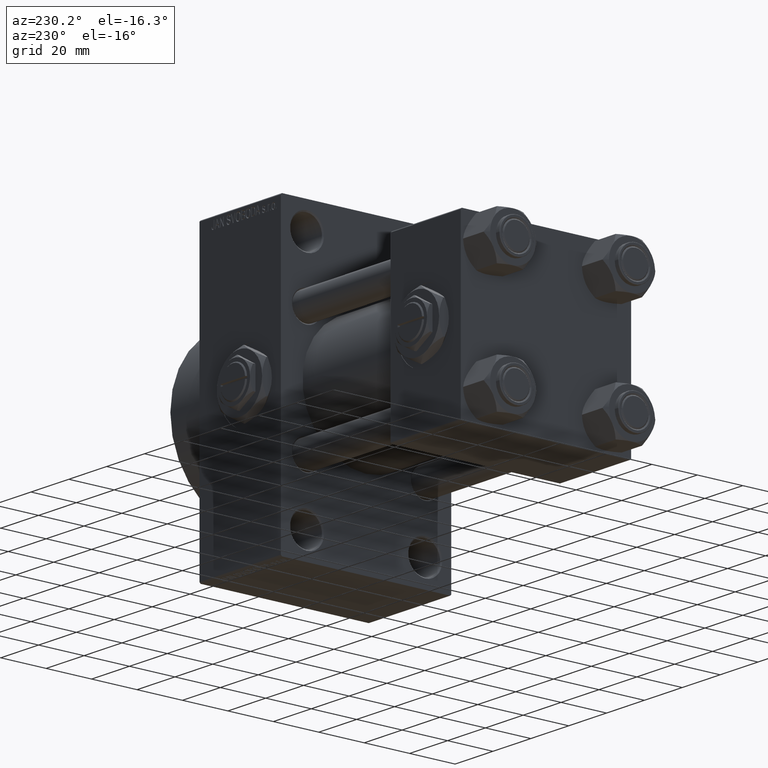
[diagram: clean part render]
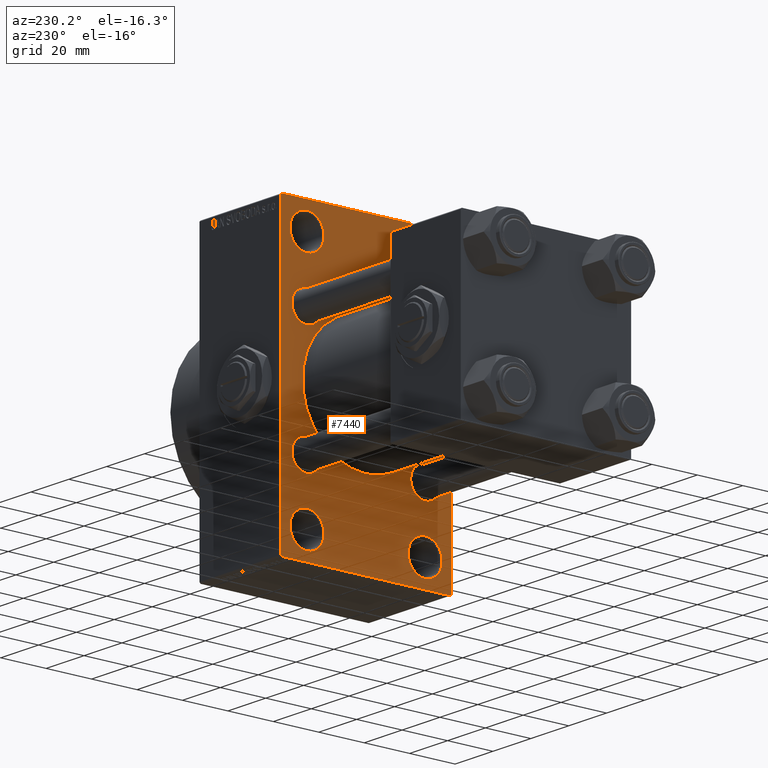
[diagram: same view with one face highlighted and labeled with its STEP entity id]
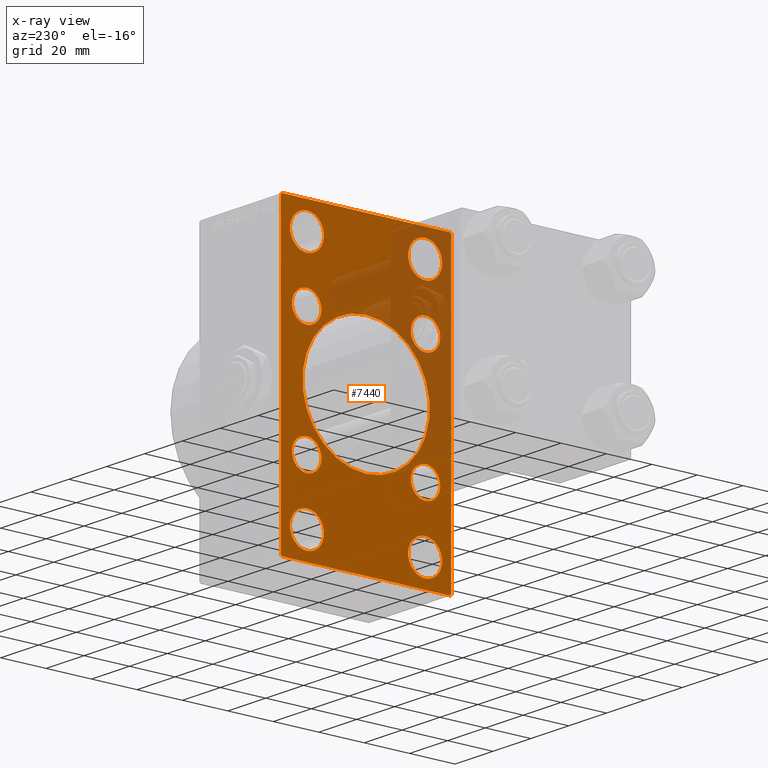
[diagram: x-ray of the same camera — body ghosted, the highlighted face saturated]
A machine part, auxiliary view. The second image highlights one B-rep face of the part: STEP entity #7440.
The next image is the same camera in x-ray: the body ghosted, the highlighted face saturated — about 28% of this face is hidden behind the body in this view.
In plain terms, the highlighted planar face has unit normal (-1, 0, 0).
Its self-contained STEP definition (entity closure, byte-faithful):
#83 = DIRECTION ( 'NONE',  ( 0.000000000000000000, 0.000000000000000000, 1.000000000000000000 ) ) ;
#128 = EDGE_LOOP ( 'NONE', ( #4265, #7897 ) ) ;
#221 = DIRECTION ( 'NONE',  ( 1.000000000000000000, -0.000000000000000000, 0.000000000000000000 ) ) ;
#270 = DIRECTION ( 'NONE',  ( 0.000000000000000000, 0.000000000000000000, -1.000000000000000000 ) ) ;
#313 = CARTESIAN_POINT ( 'NONE',  ( 95.00000000000000000, -36.99999999999993605, -64.00000000000001421 ) ) ;
#574 = CARTESIAN_POINT ( 'NONE',  ( 95.00000000000000000, 26.14999999999999858, -26.15000000000000213 ) ) ;
#795 = AXIS2_PLACEMENT_3D ( 'NONE', #7275, #15244, #38289 ) ;
#829 = CIRCLE ( 'NONE', #40812, 7.499999999999978684 ) ;
#1043 = AXIS2_PLACEMENT_3D ( 'NONE', #39448, #14977, #7744 ) ;
#1136 = CARTESIAN_POINT ( 'NONE',  ( 95.00000000000000000, 37.49999999999999289, -63.50000000000001421 ) ) ;
#1391 = ORIENTED_EDGE ( 'NONE', *, *, #9549, .T. ) ;
#1440 = DIRECTION ( 'NONE',  ( -0.000000000000000000, -0.7071067811865573427, -0.7071067811865378028 ) ) ;
#1737 = CARTESIAN_POINT ( 'NONE',  ( 95.00000000000000000, -37.49999999999999289, -63.49999999999997158 ) ) ;
#1801 = FACE_BOUND ( 'NONE', #28844, .T. ) ;
#2173 = VERTEX_POINT ( 'NONE', #29539 ) ;
#2260 = CARTESIAN_POINT ( 'NONE',  ( 95.00000000000000000, 26.14999999999999858, -32.65000000000001279 ) ) ;
#2422 = VERTEX_POINT ( 'NONE', #24739 ) ;
#2558 = AXIS2_PLACEMENT_3D ( 'NONE', #39800, #5780, #21021 ) ;
#2568 = CARTESIAN_POINT ( 'NONE',  ( 95.00000000000000000, 37.49999999999999289, -64.00000000000000000 ) ) ;
#2879 = AXIS2_PLACEMENT_3D ( 'NONE', #11671, #4660, #42198 ) ;
#2905 = EDGE_CURVE ( 'NONE', #48342, #20777, #10766, .T. ) ;
#3347 = LINE ( 'NONE', #18590, #21278 ) ;
#4265 = ORIENTED_EDGE ( 'NONE', *, *, #29586, .T. ) ;
#4648 = DIRECTION ( 'NONE',  ( 0.000000000000000000, 0.000000000000000000, -1.000000000000000000 ) ) ;
#4660 = DIRECTION ( 'NONE',  ( 1.000000000000000000, -0.000000000000000000, 0.000000000000000000 ) ) ;
#4897 = CARTESIAN_POINT ( 'NONE',  ( 95.00000000000000000, 26.14999999999999858, 19.64999999999999147 ) ) ;
#4958 = ORIENTED_EDGE ( 'NONE', *, *, #2905, .T. ) ;
#5078 = EDGE_LOOP ( 'NONE', ( #39552, #40648 ) ) ;
#5302 = VERTEX_POINT ( 'NONE', #22770 ) ;
#5314 = CIRCLE ( 'NONE', #2879, 7.499999999999978684 ) ;
#5387 = VERTEX_POINT ( 'NONE', #7505 ) ;
#5542 = EDGE_CURVE ( 'NONE', #17296, #26018, #8448, .T. ) ;
#5745 = CARTESIAN_POINT ( 'NONE',  ( 95.00000000000000000, 26.00000000000000000, -52.49999999999999289 ) ) ;
#5780 = DIRECTION ( 'NONE',  ( 1.000000000000000000, -0.000000000000000000, 0.000000000000000000 ) ) ;
#6471 = ORIENTED_EDGE ( 'NONE', *, *, #7016, .T. ) ;
#6828 = CARTESIAN_POINT ( 'NONE',  ( 95.00000000000000000, -26.14999999999999147, -19.65000000000000213 ) ) ;
#7016 = EDGE_CURVE ( 'NONE', #20777, #48342, #11780, .T. ) ;
#7101 = DIRECTION ( 'NONE',  ( 0.000000000000000000, -0.7071067811865574537, 0.7071067811865376918 ) ) ;
#7174 = CARTESIAN_POINT ( 'NONE',  ( 95.00000000000000000, -36.99999999999995737, 63.99999999999997158 ) ) ;
#7267 = AXIS2_PLACEMENT_3D ( 'NONE', #10365, #19769, #270 ) ;
#7275 = CARTESIAN_POINT ( 'NONE',  ( 95.00000000000000000, 26.14999999999999858, -26.15000000000000213 ) ) ;
#7440 = ADVANCED_FACE ( 'NONE', ( #28074, #1801, #13057, #16794, #43597, #32579, #36338, #24825, #40086, #23826 ), #28326, .T. ) ;
#7505 = CARTESIAN_POINT ( 'NONE',  ( 95.00000000000000000, 26.00000000000000000, 45.00000000000001421 ) ) ;
#7661 = CIRCLE ( 'NONE', #24417, 28.00000000000000000 ) ;
#7744 = DIRECTION ( 'NONE',  ( 0.000000000000000000, 0.000000000000000000, 1.000000000000000000 ) ) ;
#7897 = ORIENTED_EDGE ( 'NONE', *, *, #23040, .T. ) ;
#8448 = CIRCLE ( 'NONE', #33997, 7.499999999999978684 ) ;
#8469 = DIRECTION ( 'NONE',  ( 0.000000000000000000, 0.000000000000000000, 1.000000000000000000 ) ) ;
#9117 = CARTESIAN_POINT ( 'NONE',  ( 95.00000000000000000, 26.00000000000000000, 52.49999999999999289 ) ) ;
#9549 = EDGE_CURVE ( 'NONE', #16879, #11946, #7661, .T. ) ;
#9604 = AXIS2_PLACEMENT_3D ( 'NONE', #42260, #221, #8469 ) ;
#9639 = CARTESIAN_POINT ( 'NONE',  ( 95.00000000000000000, -26.14999999999999147, -32.65000000000001990 ) ) ;
#9651 = VERTEX_POINT ( 'NONE', #10255 ) ;
#10255 = CARTESIAN_POINT ( 'NONE',  ( 95.00000000000000000, -25.99999999999999645, -59.99999999999997158 ) ) ;
#10301 = EDGE_CURVE ( 'NONE', #9651, #46891, #5314, .T. ) ;
#10365 = CARTESIAN_POINT ( 'NONE',  ( 95.00000000000000000, -2.602085213965210642E-15, 0.000000000000000000 ) ) ;
#10376 = ORIENTED_EDGE ( 'NONE', *, *, #10301, .T. ) ;
#10536 = CARTESIAN_POINT ( 'NONE',  ( 95.00000000000000000, -26.14999999999999147, 26.15000000000000924 ) ) ;
#10648 = CIRCLE ( 'NONE', #1043, 7.499999999999978684 ) ;
#10751 = CARTESIAN_POINT ( 'NONE',  ( 95.00000000000000000, -26.14999999999999147, 26.15000000000000924 ) ) ;
#10766 = CIRCLE ( 'NONE', #12328, 6.500000000000008882 ) ;
#11130 = DIRECTION ( 'NONE',  ( 0.000000000000000000, 0.000000000000000000, 1.000000000000000000 ) ) ;
#11671 = CARTESIAN_POINT ( 'NONE',  ( 95.00000000000000000, -25.99999999999999645, -52.49999999999999289 ) ) ;
#11690 = CARTESIAN_POINT ( 'NONE',  ( 95.00000000000000000, 8.269258236473776482E-16, -28.00000000000000000 ) ) ;
#11780 = CIRCLE ( 'NONE', #15759, 6.500000000000008882 ) ;
#11946 = VERTEX_POINT ( 'NONE', #11690 ) ;
#12007 = AXIS2_PLACEMENT_3D ( 'NONE', #16484, #24266, #12997 ) ;
#12328 = AXIS2_PLACEMENT_3D ( 'NONE', #34654, #45177, #11130 ) ;
#12398 = DIRECTION ( 'NONE',  ( 0.000000000000000000, -1.000000000000000000, -1.850371707708594563E-16 ) ) ;
#12556 = DIRECTION ( 'NONE',  ( -1.000000000000000000, 0.000000000000000000, -0.000000000000000000 ) ) ;
#12935 = VECTOR ( 'NONE', #37689, 1000.000000000000000 ) ;
#12997 = DIRECTION ( 'NONE',  ( 0.000000000000000000, 0.000000000000000000, 1.000000000000000000 ) ) ;
#13057 = FACE_BOUND ( 'NONE', #5078, .T. ) ;
#13366 = CIRCLE ( 'NONE', #44559, 6.500000000000008882 ) ;
#13392 = DIRECTION ( 'NONE',  ( 1.000000000000000000, -0.000000000000000000, 0.000000000000000000 ) ) ;
#13487 = EDGE_CURVE ( 'NONE', #29581, #40166, #13366, .T. ) ;
#13645 = CIRCLE ( 'NONE', #7267, 28.00000000000000000 ) ;
#14157 = LINE ( 'NONE', #26166, #12935 ) ;
#14362 = CIRCLE ( 'NONE', #9604, 6.500000000000008882 ) ;
#14414 = VECTOR ( 'NONE', #17595, 1000.000000000000000 ) ;
#14809 = VERTEX_POINT ( 'NONE', #15673 ) ;
#14973 = AXIS2_PLACEMENT_3D ( 'NONE', #24572, #12556, #47094 ) ;
#14977 = DIRECTION ( 'NONE',  ( 1.000000000000000000, -0.000000000000000000, 0.000000000000000000 ) ) ;
#15058 = CARTESIAN_POINT ( 'NONE',  ( 95.00000000000000000, -26.14999999999999147, 32.65000000000001990 ) ) ;
#15224 = CARTESIAN_POINT ( 'NONE',  ( 95.00000000000000000, 50.49999999999894840, 50.50000000000176215 ) ) ;
#15244 = DIRECTION ( 'NONE',  ( 1.000000000000000000, -0.000000000000000000, 0.000000000000000000 ) ) ;
#15624 = CARTESIAN_POINT ( 'NONE',  ( 95.00000000000000000, -2.602085213965210642E-15, 28.00000000000000000 ) ) ;
#15673 = CARTESIAN_POINT ( 'NONE',  ( 95.00000000000000000, 26.14999999999999858, -19.64999999999999503 ) ) ;
#15759 = AXIS2_PLACEMENT_3D ( 'NONE', #36454, #39713, #19754 ) ;
#15825 = AXIS2_PLACEMENT_3D ( 'NONE', #17893, #44684, #41673 ) ;
#16376 = LINE ( 'NONE', #42923, #16953 ) ;
#16484 = CARTESIAN_POINT ( 'NONE',  ( 95.00000000000000000, -25.99999999999999645, 52.50000000000000000 ) ) ;
#16794 = FACE_BOUND ( 'NONE', #128, .T. ) ;
#16879 = VERTEX_POINT ( 'NONE', #15624 ) ;
#16953 = VECTOR ( 'NONE', #4648, 1000.000000000000000 ) ;
#16986 = CIRCLE ( 'NONE', #29800, 7.499999999999978684 ) ;
#17296 = VERTEX_POINT ( 'NONE', #36085 ) ;
#17381 = VERTEX_POINT ( 'NONE', #7174 ) ;
#17467 = EDGE_LOOP ( 'NONE', ( #33487, #49506 ) ) ;
#17502 = DIRECTION ( 'NONE',  ( 0.000000000000000000, 0.000000000000000000, 1.000000000000000000 ) ) ;
#17526 = DIRECTION ( 'NONE',  ( 1.000000000000000000, -0.000000000000000000, 0.000000000000000000 ) ) ;
#17595 = DIRECTION ( 'NONE',  ( 0.000000000000000000, -1.000000000000000000, -1.850371707708594563E-16 ) ) ;
#17893 = CARTESIAN_POINT ( 'NONE',  ( 95.00000000000000000, 26.00000000000000000, -52.49999999999999289 ) ) ;
#18053 = EDGE_LOOP ( 'NONE', ( #6471, #4958 ) ) ;
#18349 = CARTESIAN_POINT ( 'NONE',  ( 95.00000000000000000, 37.50000000000000000, 63.99999999999998579 ) ) ;
#18590 = CARTESIAN_POINT ( 'NONE',  ( 95.00000000000000000, -50.49999999999945999, -50.50000000000086686 ) ) ;
#18765 = ORIENTED_EDGE ( 'NONE', *, *, #27951, .T. ) ;
#19047 = CARTESIAN_POINT ( 'NONE',  ( 95.00000000000000000, -25.99999999999999645, -45.00000000000001421 ) ) ;
#19219 = EDGE_CURVE ( 'NONE', #40166, #29581, #45518, .T. ) ;
#19343 = EDGE_CURVE ( 'NONE', #2173, #2422, #49528, .T. ) ;
#19754 = DIRECTION ( 'NONE',  ( 0.000000000000000000, 0.000000000000000000, 1.000000000000000000 ) ) ;
#19769 = DIRECTION ( 'NONE',  ( 1.000000000000000000, 0.000000000000000000, 0.000000000000000000 ) ) ;
#20321 = CARTESIAN_POINT ( 'NONE',  ( 95.00000000000000000, -25.99999999999999645, 52.50000000000000000 ) ) ;
#20371 = DIRECTION ( 'NONE',  ( -0.000000000000000000, 0.7071067811865524577, 0.7071067811865426878 ) ) ;
#20777 = VERTEX_POINT ( 'NONE', #29565 ) ;
#20990 = DIRECTION ( 'NONE',  ( 1.000000000000000000, -0.000000000000000000, 0.000000000000000000 ) ) ;
#21021 = DIRECTION ( 'NONE',  ( 0.000000000000000000, 0.000000000000000000, 1.000000000000000000 ) ) ;
#21278 = VECTOR ( 'NONE', #7101, 999.9999999999998863 ) ;
#21433 = VERTEX_POINT ( 'NONE', #9639 ) ;
#21584 = AXIS2_PLACEMENT_3D ( 'NONE', #9117, #43155, #24381 ) ;
#21651 = CARTESIAN_POINT ( 'NONE',  ( 95.00000000000000000, 26.00000000000000000, 52.49999999999999289 ) ) ;
#22770 = CARTESIAN_POINT ( 'NONE',  ( 95.00000000000000000, -25.99999999999999645, 45.00000000000002132 ) ) ;
#22927 = EDGE_CURVE ( 'NONE', #49149, #17381, #31882, .T. ) ;
#23006 = ORIENTED_EDGE ( 'NONE', *, *, #24173, .F. ) ;
#23040 = EDGE_CURVE ( 'NONE', #5387, #39050, #26361, .T. ) ;
#23274 = VERTEX_POINT ( 'NONE', #313 ) ;
#23352 = ORIENTED_EDGE ( 'NONE', *, *, #24378, .T. ) ;
#23587 = EDGE_CURVE ( 'NONE', #14809, #46117, #43952, .T. ) ;
#23785 = EDGE_CURVE ( 'NONE', #47487, #5302, #47198, .T. ) ;
#23812 = VERTEX_POINT ( 'NONE', #1737 ) ;
#23826 = FACE_OUTER_BOUND ( 'NONE', #39611, .T. ) ;
#24104 = EDGE_LOOP ( 'NONE', ( #25696, #29888 ) ) ;
#24173 = EDGE_CURVE ( 'NONE', #2173, #17381, #32894, .T. ) ;
#24266 = DIRECTION ( 'NONE',  ( 1.000000000000000000, -0.000000000000000000, 0.000000000000000000 ) ) ;
#24378 = EDGE_CURVE ( 'NONE', #5302, #47487, #829, .T. ) ;
#24381 = DIRECTION ( 'NONE',  ( 0.000000000000000000, 0.000000000000000000, 1.000000000000000000 ) ) ;
#24417 = AXIS2_PLACEMENT_3D ( 'NONE', #46811, #39804, #39553 ) ;
#24572 = CARTESIAN_POINT ( 'NONE',  ( 95.00000000000000000, 0.000000000000000000, 0.000000000000000000 ) ) ;
#24739 = CARTESIAN_POINT ( 'NONE',  ( 95.00000000000000000, 37.50000000000000000, 63.49999999999998579 ) ) ;
#24825 = FACE_BOUND ( 'NONE', #17467, .T. ) ;
#25369 = EDGE_CURVE ( 'NONE', #11946, #16879, #13645, .T. ) ;
#25526 = AXIS2_PLACEMENT_3D ( 'NONE', #574, #38857, #83 ) ;
#25696 = ORIENTED_EDGE ( 'NONE', *, *, #19219, .T. ) ;
#25793 = DIRECTION ( 'NONE',  ( 0.000000000000000000, 0.000000000000000000, 1.000000000000000000 ) ) ;
#26018 = VERTEX_POINT ( 'NONE', #47341 ) ;
#26166 = CARTESIAN_POINT ( 'NONE',  ( 95.00000000000000000, 37.50000000000000000, 63.99999999999998579 ) ) ;
#26361 = CIRCLE ( 'NONE', #21584, 7.499999999999978684 ) ;
#26539 = VECTOR ( 'NONE', #1440, 1000.000000000000000 ) ;
#26982 = CARTESIAN_POINT ( 'NONE',  ( 95.00000000000000000, -37.49999999999999289, 63.49999999999994316 ) ) ;
#27033 = EDGE_CURVE ( 'NONE', #2422, #28154, #14157, .T. ) ;
#27192 = VECTOR ( 'NONE', #20371, 1000.000000000000000 ) ;
#27309 = CIRCLE ( 'NONE', #2558, 6.500000000000008882 ) ;
#27573 = DIRECTION ( 'NONE',  ( 0.000000000000000000, 0.000000000000000000, 1.000000000000000000 ) ) ;
#27951 = EDGE_CURVE ( 'NONE', #28154, #30308, #27960, .T. ) ;
#27960 = LINE ( 'NONE', #30976, #26539 ) ;
#28074 = FACE_BOUND ( 'NONE', #32347, .T. ) ;
#28154 = VERTEX_POINT ( 'NONE', #1136 ) ;
#28206 = EDGE_CURVE ( 'NONE', #49149, #23812, #16376, .T. ) ;
#28326 = PLANE ( 'NONE',  #14973 ) ;
#28844 = EDGE_LOOP ( 'NONE', ( #44155, #10376 ) ) ;
#29539 = CARTESIAN_POINT ( 'NONE',  ( 95.00000000000000000, 36.99999999999997158, 63.99999999999998579 ) ) ;
#29557 = AXIS2_PLACEMENT_3D ( 'NONE', #10751, #48541, #17502 ) ;
#29565 = CARTESIAN_POINT ( 'NONE',  ( 95.00000000000000000, 26.14999999999999858, 32.65000000000001990 ) ) ;
#29581 = VERTEX_POINT ( 'NONE', #43687 ) ;
#29586 = EDGE_CURVE ( 'NONE', #39050, #5387, #16986, .T. ) ;
#29800 = AXIS2_PLACEMENT_3D ( 'NONE', #21651, #13392, #44425 ) ;
#29888 = ORIENTED_EDGE ( 'NONE', *, *, #13487, .T. ) ;
#30308 = VERTEX_POINT ( 'NONE', #41297 ) ;
#30384 = EDGE_CURVE ( 'NONE', #46891, #9651, #10648, .T. ) ;
#30404 = CARTESIAN_POINT ( 'NONE',  ( 95.00000000000000000, 26.00000000000000000, 59.99999999999997158 ) ) ;
#30976 = CARTESIAN_POINT ( 'NONE',  ( 95.00000000000000000, 50.49999999999948841, -50.50000000000088107 ) ) ;
#31003 = DIRECTION ( 'NONE',  ( 0.000000000000000000, 0.7071067811865672237, -0.7071067811865279218 ) ) ;
#31007 = ORIENTED_EDGE ( 'NONE', *, *, #43141, .T. ) ;
#31703 = EDGE_LOOP ( 'NONE', ( #42252, #31007 ) ) ;
#31833 = DIRECTION ( 'NONE',  ( 1.000000000000000000, -0.000000000000000000, 0.000000000000000000 ) ) ;
#31882 = LINE ( 'NONE', #46899, #27192 ) ;
#32347 = EDGE_LOOP ( 'NONE', ( #33159, #23352 ) ) ;
#32579 = FACE_BOUND ( 'NONE', #18053, .T. ) ;
#32894 = LINE ( 'NONE', #18349, #14414 ) ;
#33159 = ORIENTED_EDGE ( 'NONE', *, *, #23785, .T. ) ;
#33487 = ORIENTED_EDGE ( 'NONE', *, *, #44448, .T. ) ;
#33734 = EDGE_CURVE ( 'NONE', #23274, #23812, #3347, .T. ) ;
#33997 = AXIS2_PLACEMENT_3D ( 'NONE', #5745, #20990, #47764 ) ;
#34654 = CARTESIAN_POINT ( 'NONE',  ( 95.00000000000000000, 26.14999999999999858, 26.15000000000000213 ) ) ;
#35236 = EDGE_CURVE ( 'NONE', #30308, #23274, #48355, .T. ) ;
#36085 = CARTESIAN_POINT ( 'NONE',  ( 95.00000000000000000, 26.00000000000000000, -45.00000000000001421 ) ) ;
#36256 = ORIENTED_EDGE ( 'NONE', *, *, #28206, .F. ) ;
#36338 = FACE_BOUND ( 'NONE', #31703, .T. ) ;
#36454 = CARTESIAN_POINT ( 'NONE',  ( 95.00000000000000000, 26.14999999999999858, 26.15000000000000213 ) ) ;
#36985 = EDGE_CURVE ( 'NONE', #26018, #17296, #38216, .T. ) ;
#37689 = DIRECTION ( 'NONE',  ( 0.000000000000000000, -5.421010862427522170E-17, -1.000000000000000000 ) ) ;
#38063 = ORIENTED_EDGE ( 'NONE', *, *, #33734, .T. ) ;
#38153 = CARTESIAN_POINT ( 'NONE',  ( 95.00000000000000000, -25.99999999999999645, 59.99999999999997868 ) ) ;
#38216 = CIRCLE ( 'NONE', #15825, 7.499999999999978684 ) ;
#38289 = DIRECTION ( 'NONE',  ( 0.000000000000000000, 0.000000000000000000, 1.000000000000000000 ) ) ;
#38857 = DIRECTION ( 'NONE',  ( 1.000000000000000000, -0.000000000000000000, 0.000000000000000000 ) ) ;
#39050 = VERTEX_POINT ( 'NONE', #30404 ) ;
#39448 = CARTESIAN_POINT ( 'NONE',  ( 95.00000000000000000, -25.99999999999999645, -52.49999999999999289 ) ) ;
#39552 = ORIENTED_EDGE ( 'NONE', *, *, #5542, .T. ) ;
#39553 = DIRECTION ( 'NONE',  ( 0.000000000000000000, 0.000000000000000000, -1.000000000000000000 ) ) ;
#39611 = EDGE_LOOP ( 'NONE', ( #45759, #38063, #36256, #39852, #23006, #45086, #44858, #18765 ) ) ;
#39713 = DIRECTION ( 'NONE',  ( 1.000000000000000000, -0.000000000000000000, 0.000000000000000000 ) ) ;
#39800 = CARTESIAN_POINT ( 'NONE',  ( 95.00000000000000000, -26.14999999999999147, -26.15000000000000924 ) ) ;
#39804 = DIRECTION ( 'NONE',  ( 1.000000000000000000, 0.000000000000000000, 0.000000000000000000 ) ) ;
#39852 = ORIENTED_EDGE ( 'NONE', *, *, #22927, .T. ) ;
#40086 = FACE_BOUND ( 'NONE', #45887, .T. ) ;
#40166 = VERTEX_POINT ( 'NONE', #15058 ) ;
#40648 = ORIENTED_EDGE ( 'NONE', *, *, #36985, .T. ) ;
#40812 = AXIS2_PLACEMENT_3D ( 'NONE', #20321, #31833, #27573 ) ;
#40835 = VERTEX_POINT ( 'NONE', #6828 ) ;
#41297 = CARTESIAN_POINT ( 'NONE',  ( 95.00000000000000000, 36.99999999999999289, -64.00000000000000000 ) ) ;
#41673 = DIRECTION ( 'NONE',  ( 0.000000000000000000, 0.000000000000000000, 1.000000000000000000 ) ) ;
#42144 = VECTOR ( 'NONE', #12398, 1000.000000000000000 ) ;
#42198 = DIRECTION ( 'NONE',  ( 0.000000000000000000, 0.000000000000000000, 1.000000000000000000 ) ) ;
#42252 = ORIENTED_EDGE ( 'NONE', *, *, #23587, .T. ) ;
#42260 = CARTESIAN_POINT ( 'NONE',  ( 95.00000000000000000, -26.14999999999999147, -26.15000000000000924 ) ) ;
#42344 = VECTOR ( 'NONE', #31003, 1000.000000000000000 ) ;
#42923 = CARTESIAN_POINT ( 'NONE',  ( 95.00000000000000000, -37.49999999999999289, 63.99999999999997158 ) ) ;
#43104 = CIRCLE ( 'NONE', #25526, 6.500000000000008882 ) ;
#43141 = EDGE_CURVE ( 'NONE', #46117, #14809, #43104, .T. ) ;
#43155 = DIRECTION ( 'NONE',  ( 1.000000000000000000, -0.000000000000000000, 0.000000000000000000 ) ) ;
#43185 = ORIENTED_EDGE ( 'NONE', *, *, #25369, .T. ) ;
#43597 = FACE_BOUND ( 'NONE', #24104, .T. ) ;
#43687 = CARTESIAN_POINT ( 'NONE',  ( 95.00000000000000000, -26.14999999999999147, 19.65000000000000213 ) ) ;
#43952 = CIRCLE ( 'NONE', #795, 6.500000000000008882 ) ;
#44155 = ORIENTED_EDGE ( 'NONE', *, *, #30384, .T. ) ;
#44425 = DIRECTION ( 'NONE',  ( 0.000000000000000000, 0.000000000000000000, 1.000000000000000000 ) ) ;
#44448 = EDGE_CURVE ( 'NONE', #40835, #21433, #14362, .T. ) ;
#44559 = AXIS2_PLACEMENT_3D ( 'NONE', #10536, #17526, #25793 ) ;
#44684 = DIRECTION ( 'NONE',  ( 1.000000000000000000, -0.000000000000000000, 0.000000000000000000 ) ) ;
#44858 = ORIENTED_EDGE ( 'NONE', *, *, #27033, .T. ) ;
#45086 = ORIENTED_EDGE ( 'NONE', *, *, #19343, .T. ) ;
#45177 = DIRECTION ( 'NONE',  ( 1.000000000000000000, -0.000000000000000000, 0.000000000000000000 ) ) ;
#45518 = CIRCLE ( 'NONE', #29557, 6.500000000000008882 ) ;
#45759 = ORIENTED_EDGE ( 'NONE', *, *, #35236, .T. ) ;
#45887 = EDGE_LOOP ( 'NONE', ( #1391, #43185 ) ) ;
#46117 = VERTEX_POINT ( 'NONE', #2260 ) ;
#46811 = CARTESIAN_POINT ( 'NONE',  ( 95.00000000000000000, -2.602085213965210642E-15, 0.000000000000000000 ) ) ;
#46891 = VERTEX_POINT ( 'NONE', #19047 ) ;
#46899 = CARTESIAN_POINT ( 'NONE',  ( 95.00000000000000000, -50.49999999999970868, 50.50000000000040501 ) ) ;
#47094 = DIRECTION ( 'NONE',  ( -0.000000000000000000, 0.000000000000000000, 1.000000000000000000 ) ) ;
#47198 = CIRCLE ( 'NONE', #12007, 7.499999999999978684 ) ;
#47341 = CARTESIAN_POINT ( 'NONE',  ( 95.00000000000000000, 26.00000000000000000, -59.99999999999997158 ) ) ;
#47487 = VERTEX_POINT ( 'NONE', #38153 ) ;
#47764 = DIRECTION ( 'NONE',  ( 0.000000000000000000, 0.000000000000000000, 1.000000000000000000 ) ) ;
#48342 = VERTEX_POINT ( 'NONE', #4897 ) ;
#48355 = LINE ( 'NONE', #2568, #42144 ) ;
#48541 = DIRECTION ( 'NONE',  ( 1.000000000000000000, -0.000000000000000000, 0.000000000000000000 ) ) ;
#48936 = EDGE_CURVE ( 'NONE', #21433, #40835, #27309, .T. ) ;
#49149 = VERTEX_POINT ( 'NONE', #26982 ) ;
#49506 = ORIENTED_EDGE ( 'NONE', *, *, #48936, .T. ) ;
#49528 = LINE ( 'NONE', #15224, #42344 ) ;